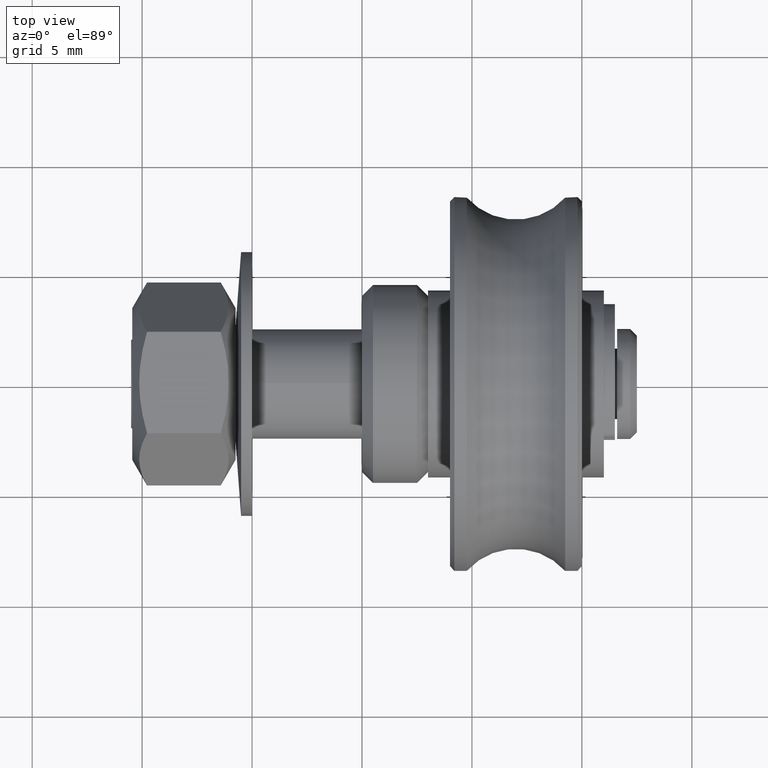
[diagram: clean part render]
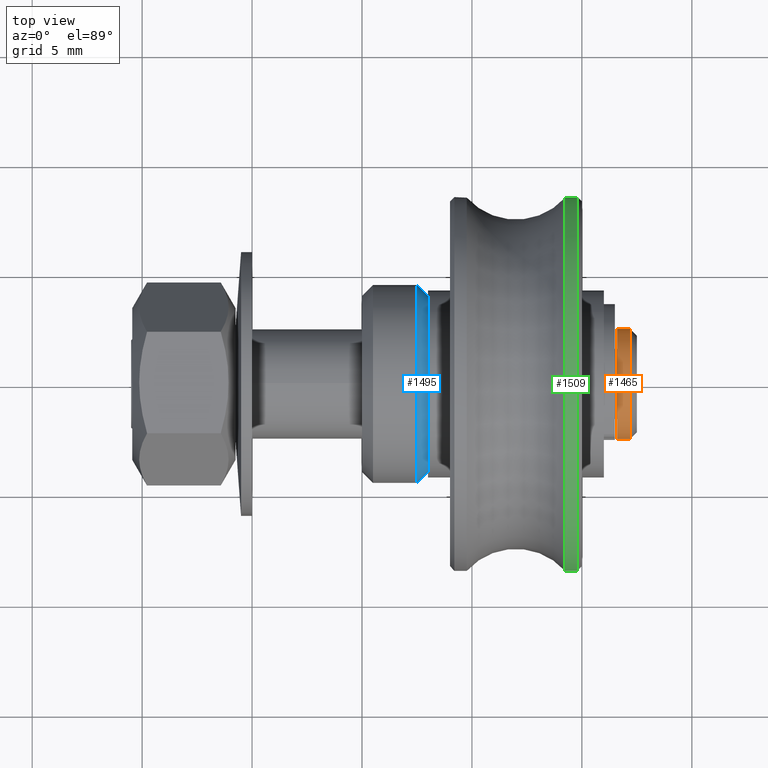
[diagram: same view with three faces highlighted in distinct colors, each labeled with its STEP entity id]
A machine part, top view with three faces highlighted in distinct colors.
Their STEP definitions:

[orange] entity #1465 — the highlighted cylindrical surface (bore or boss wall) has radius 2.5 mm, axis along (1, 0, 0).
#126=CYLINDRICAL_SURFACE('',#1700,2.5);
#156=FACE_OUTER_BOUND('',#250,.T.);
#250=EDGE_LOOP('',(#1027,#1028,#1029,#1030,#1031));
#356=LINE('',#2397,#471);
#471=VECTOR('',#1901,2.5);
#586=CIRCLE('',#1698,2.5);
#587=CIRCLE('',#1699,2.5);
#588=CIRCLE('',#1701,2.5);
#673=VERTEX_POINT('',#2390);
#674=VERTEX_POINT('',#2392);
#675=VERTEX_POINT('',#2396);
#810=EDGE_CURVE('',#673,#674,#586,.T.);
#811=EDGE_CURVE('',#674,#673,#587,.T.);
#812=EDGE_CURVE('',#674,#675,#356,.T.);
#813=EDGE_CURVE('',#675,#675,#588,.T.);
#1027=ORIENTED_EDGE('',*,*,#810,.F.);
#1028=ORIENTED_EDGE('',*,*,#811,.F.);
#1029=ORIENTED_EDGE('',*,*,#812,.T.);
#1030=ORIENTED_EDGE('',*,*,#813,.T.);
#1031=ORIENTED_EDGE('',*,*,#812,.F.);
#1465=ADVANCED_FACE('',(#156),#126,.T.);
#1698=AXIS2_PLACEMENT_3D('',#2393,#1895,#1896);
#1699=AXIS2_PLACEMENT_3D('',#2394,#1897,#1898);
#1700=AXIS2_PLACEMENT_3D('',#2395,#1899,#1900);
#1701=AXIS2_PLACEMENT_3D('',#2398,#1902,#1903);
#1895=DIRECTION('center_axis',(1.,0.,0.));
#1896=DIRECTION('ref_axis',(0.,-1.,0.));
#1897=DIRECTION('center_axis',(1.,0.,0.));
#1898=DIRECTION('ref_axis',(0.,-1.,0.));
#1899=DIRECTION('center_axis',(1.,0.,0.));
#1900=DIRECTION('ref_axis',(0.,1.,0.));
#1901=DIRECTION('',(-1.,0.,0.));
#1902=DIRECTION('center_axis',(1.,0.,0.));
#1903=DIRECTION('ref_axis',(0.,1.,0.));
#2390=CARTESIAN_POINT('',(12.2,2.5,3.06161699786838E-16));
#2392=CARTESIAN_POINT('',(12.2,-2.5,-3.06161699786838E-16));
#2393=CARTESIAN_POINT('Origin',(12.2,0.,0.));
#2394=CARTESIAN_POINT('Origin',(12.2,0.,0.));
#2395=CARTESIAN_POINT('Origin',(12.05,0.,0.));
#2396=CARTESIAN_POINT('',(11.6,-2.5,-3.06161699786838E-16));
#2397=CARTESIAN_POINT('',(12.05,-2.5,-3.06161699786838E-16));
#2398=CARTESIAN_POINT('Origin',(11.6,0.,0.));

[blue] entity #1495 — the highlighted conical surface has half-angle 45 deg.
#186=FACE_OUTER_BOUND('',#281,.T.);
#281=EDGE_LOOP('',(#1159,#1160,#1161,#1162,#1163));
#409=LINE('',#2538,#524);
#524=VECTOR('',#2046,4.25);
#603=CIRCLE('',#1746,4.);
#604=CIRCLE('',#1747,4.5);
#605=CIRCLE('',#1748,4.5);
#716=VERTEX_POINT('',#2535);
#717=VERTEX_POINT('',#2537);
#718=VERTEX_POINT('',#2539);
#880=EDGE_CURVE('',#716,#716,#603,.T.);
#881=EDGE_CURVE('',#716,#717,#409,.T.);
#882=EDGE_CURVE('',#717,#718,#604,.T.);
#883=EDGE_CURVE('',#718,#717,#605,.T.);
#1159=ORIENTED_EDGE('',*,*,#880,.T.);
#1160=ORIENTED_EDGE('',*,*,#881,.T.);
#1161=ORIENTED_EDGE('',*,*,#882,.T.);
#1162=ORIENTED_EDGE('',*,*,#883,.T.);
#1163=ORIENTED_EDGE('',*,*,#881,.F.);
#1453=CONICAL_SURFACE('',#1745,4.25,0.785398163397448);
#1495=ADVANCED_FACE('',(#186),#1453,.T.);
#1745=AXIS2_PLACEMENT_3D('',#2534,#2042,#2043);
#1746=AXIS2_PLACEMENT_3D('',#2536,#2044,#2045);
#1747=AXIS2_PLACEMENT_3D('',#2540,#2047,#2048);
#1748=AXIS2_PLACEMENT_3D('',#2541,#2049,#2050);
#2042=DIRECTION('center_axis',(-1.,0.,0.));
#2043=DIRECTION('ref_axis',(0.,-1.,0.));
#2044=DIRECTION('center_axis',(-1.,0.,0.));
#2045=DIRECTION('ref_axis',(0.,-1.,0.));
#2046=DIRECTION('',(-0.707106781186548,0.707106781186547,8.65956056235493E-17));
#2047=DIRECTION('center_axis',(1.,0.,0.));
#2048=DIRECTION('ref_axis',(0.,-1.,0.));
#2049=DIRECTION('center_axis',(1.,0.,0.));
#2050=DIRECTION('ref_axis',(0.,-1.,0.));
#2534=CARTESIAN_POINT('Origin',(2.75,0.,0.));
#2535=CARTESIAN_POINT('',(3.,4.,-4.89858719658941E-16));
#2536=CARTESIAN_POINT('Origin',(3.,0.,0.));
#2537=CARTESIAN_POINT('',(2.5,4.5,5.51091059616309E-16));
#2538=CARTESIAN_POINT('',(2.75,4.25,5.20474889637625E-16));
#2539=CARTESIAN_POINT('',(2.5,-4.5,-5.51091059616309E-16));
#2540=CARTESIAN_POINT('Origin',(2.5,0.,0.));
#2541=CARTESIAN_POINT('Origin',(2.5,0.,0.));

[green] entity #1509 — the highlighted cylindrical surface (bore or boss wall) has radius 8.5 mm, axis along (-1, 0, 0).
#133=CYLINDRICAL_SURFACE('',#1777,8.5);
#200=FACE_OUTER_BOUND('',#301,.T.);
#301=EDGE_LOOP('',(#1213,#1214,#1215,#1216,#1217,#1218));
#417=LINE('',#2595,#532);
#532=VECTOR('',#2118,8.5);
#616=CIRCLE('',#1772,8.5);
#617=CIRCLE('',#1773,8.5);
#620=CIRCLE('',#1778,8.5);
#621=CIRCLE('',#1779,8.5);
#729=VERTEX_POINT('',#2581);
#730=VERTEX_POINT('',#2582);
#733=VERTEX_POINT('',#2592);
#734=VERTEX_POINT('',#2593);
#900=EDGE_CURVE('',#729,#730,#616,.T.);
#901=EDGE_CURVE('',#730,#729,#617,.T.);
#905=EDGE_CURVE('',#733,#734,#620,.T.);
#906=EDGE_CURVE('',#733,#730,#417,.T.);
#907=EDGE_CURVE('',#734,#733,#621,.T.);
#1213=ORIENTED_EDGE('',*,*,#905,.F.);
#1214=ORIENTED_EDGE('',*,*,#906,.T.);
#1215=ORIENTED_EDGE('',*,*,#900,.F.);
#1216=ORIENTED_EDGE('',*,*,#901,.F.);
#1217=ORIENTED_EDGE('',*,*,#906,.F.);
#1218=ORIENTED_EDGE('',*,*,#907,.F.);
#1509=ADVANCED_FACE('',(#200),#133,.T.);
#1772=AXIS2_PLACEMENT_3D('',#2583,#2103,#2104);
#1773=AXIS2_PLACEMENT_3D('',#2584,#2105,#2106);
#1777=AXIS2_PLACEMENT_3D('',#2591,#2114,#2115);
#1778=AXIS2_PLACEMENT_3D('',#2594,#2116,#2117);
#1779=AXIS2_PLACEMENT_3D('',#2596,#2119,#2120);
#2103=DIRECTION('center_axis',(-1.,0.,0.));
#2104=DIRECTION('ref_axis',(0.,-1.,0.));
#2105=DIRECTION('center_axis',(-1.,0.,0.));
#2106=DIRECTION('ref_axis',(0.,-1.,0.));
#2114=DIRECTION('center_axis',(1.,0.,0.));
#2115=DIRECTION('ref_axis',(0.,1.,0.));
#2116=DIRECTION('center_axis',(1.,0.,0.));
#2117=DIRECTION('ref_axis',(0.,1.,0.));
#2118=DIRECTION('',(-1.,0.,0.));
#2119=DIRECTION('center_axis',(1.,0.,0.));
#2120=DIRECTION('ref_axis',(0.,1.,0.));
#2581=CARTESIAN_POINT('',(-2.8,8.5,-1.04094977927525E-15));
#2582=CARTESIAN_POINT('',(-2.8,-8.5,-1.04094977927525E-15));
#2583=CARTESIAN_POINT('Origin',(-2.8,0.,0.));
#2584=CARTESIAN_POINT('Origin',(-2.8,0.,0.));
#2591=CARTESIAN_POINT('Origin',(-2.6180339887499,0.,0.));
#2592=CARTESIAN_POINT('',(-2.23606797749979,-8.5,-1.04094977927525E-15));
#2593=CARTESIAN_POINT('',(-2.23606797749979,-1.04094977927525E-15,8.5));
#2594=CARTESIAN_POINT('Origin',(-2.23606797749979,0.,0.));
#2595=CARTESIAN_POINT('',(-2.6180339887499,-8.5,-1.04094977927525E-15));
#2596=CARTESIAN_POINT('Origin',(-2.23606797749979,0.,0.));